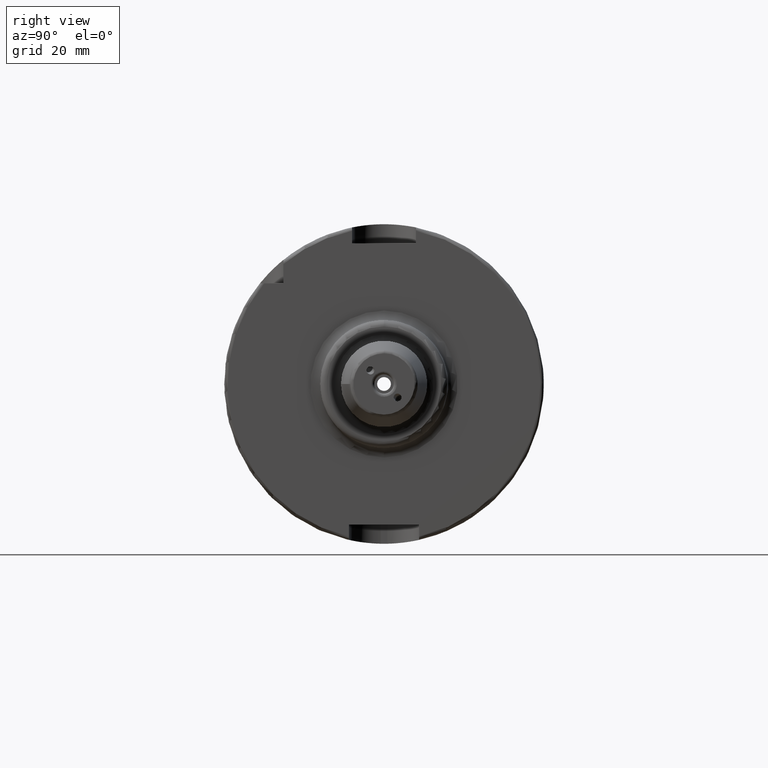
[diagram: clean part render]
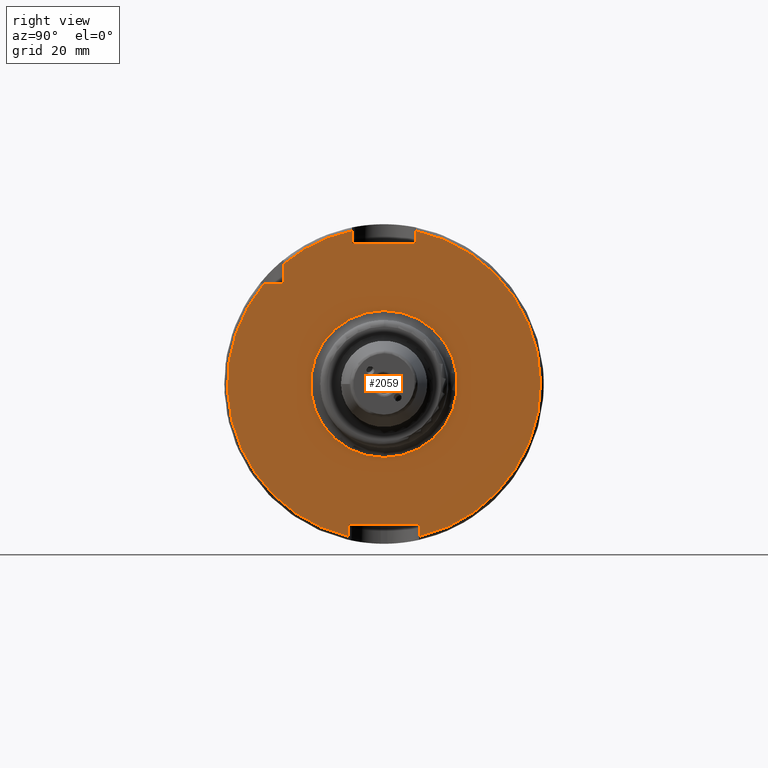
[diagram: same view with one face highlighted and labeled with its STEP entity id]
A machine part, right view. The second image highlights one B-rep face of the part: STEP entity #2059.
In plain terms, the highlighted planar face has unit normal (1, 0, 0).
Its self-contained STEP definition (entity closure, byte-faithful):
#89=FACE_BOUND('',#358,.T.);
#101=PLANE('',#2232);
#229=FACE_OUTER_BOUND('',#357,.T.);
#357=EDGE_LOOP('',(#1439,#1440,#1441,#1442,#1443,#1444,#1445,#1446,#1447,
#1448,#1449));
#358=EDGE_LOOP('',(#1450));
#484=LINE('',#3196,#592);
#485=LINE('',#3200,#593);
#486=LINE('',#3202,#594);
#487=LINE('',#3204,#595);
#488=LINE('',#3208,#596);
#489=LINE('',#3210,#597);
#490=LINE('',#3212,#598);
#491=LINE('',#3215,#599);
#592=VECTOR('',#2558,10.);
#593=VECTOR('',#2561,10.);
#594=VECTOR('',#2562,10.);
#595=VECTOR('',#2563,10.);
#596=VECTOR('',#2566,10.);
#597=VECTOR('',#2567,10.);
#598=VECTOR('',#2568,10.);
#599=VECTOR('',#2571,10.);
#715=CIRCLE('',#2231,23.);
#716=CIRCLE('',#2233,49.);
#717=CIRCLE('',#2234,49.);
#718=CIRCLE('',#2235,49.);
#855=VERTEX_POINT('',#3190);
#856=VERTEX_POINT('',#3194);
#857=VERTEX_POINT('',#3195);
#858=VERTEX_POINT('',#3197);
#859=VERTEX_POINT('',#3199);
#860=VERTEX_POINT('',#3201);
#861=VERTEX_POINT('',#3203);
#862=VERTEX_POINT('',#3205);
#863=VERTEX_POINT('',#3207);
#864=VERTEX_POINT('',#3209);
#865=VERTEX_POINT('',#3211);
#866=VERTEX_POINT('',#3213);
#1079=EDGE_CURVE('',#855,#855,#715,.T.);
#1080=EDGE_CURVE('',#856,#857,#484,.T.);
#1081=EDGE_CURVE('',#857,#858,#716,.T.);
#1082=EDGE_CURVE('',#858,#859,#485,.T.);
#1083=EDGE_CURVE('',#859,#860,#486,.T.);
#1084=EDGE_CURVE('',#860,#861,#487,.T.);
#1085=EDGE_CURVE('',#861,#862,#717,.T.);
#1086=EDGE_CURVE('',#862,#863,#488,.T.);
#1087=EDGE_CURVE('',#863,#864,#489,.T.);
#1088=EDGE_CURVE('',#864,#865,#490,.T.);
#1089=EDGE_CURVE('',#865,#866,#718,.T.);
#1090=EDGE_CURVE('',#866,#856,#491,.T.);
#1439=ORIENTED_EDGE('',*,*,#1080,.T.);
#1440=ORIENTED_EDGE('',*,*,#1081,.T.);
#1441=ORIENTED_EDGE('',*,*,#1082,.T.);
#1442=ORIENTED_EDGE('',*,*,#1083,.T.);
#1443=ORIENTED_EDGE('',*,*,#1084,.T.);
#1444=ORIENTED_EDGE('',*,*,#1085,.T.);
#1445=ORIENTED_EDGE('',*,*,#1086,.T.);
#1446=ORIENTED_EDGE('',*,*,#1087,.T.);
#1447=ORIENTED_EDGE('',*,*,#1088,.T.);
#1448=ORIENTED_EDGE('',*,*,#1089,.T.);
#1449=ORIENTED_EDGE('',*,*,#1090,.T.);
#1450=ORIENTED_EDGE('',*,*,#1079,.F.);
#2059=ADVANCED_FACE('',(#229,#89),#101,.T.);
#2231=AXIS2_PLACEMENT_3D('',#3192,#2554,#2555);
#2232=AXIS2_PLACEMENT_3D('',#3193,#2556,#2557);
#2233=AXIS2_PLACEMENT_3D('',#3198,#2559,#2560);
#2234=AXIS2_PLACEMENT_3D('',#3206,#2564,#2565);
#2235=AXIS2_PLACEMENT_3D('',#3214,#2569,#2570);
#2554=DIRECTION('center_axis',(1.,0.,0.));
#2555=DIRECTION('ref_axis',(0.,-1.,-1.22464679914735E-16));
#2556=DIRECTION('center_axis',(1.,0.,0.));
#2557=DIRECTION('ref_axis',(0.,0.,-1.));
#2558=DIRECTION('',(0.,-1.,0.));
#2559=DIRECTION('center_axis',(1.,0.,0.));
#2560=DIRECTION('ref_axis',(0.,0.,-1.));
#2561=DIRECTION('',(0.,0.,1.));
#2562=DIRECTION('',(0.,1.,0.));
#2563=DIRECTION('',(0.,0.,-1.));
#2564=DIRECTION('center_axis',(1.,0.,0.));
#2565=DIRECTION('ref_axis',(0.,0.,-1.));
#2566=DIRECTION('',(0.,0.,-1.));
#2567=DIRECTION('',(0.,-1.,0.));
#2568=DIRECTION('',(0.,0.,1.));
#2569=DIRECTION('center_axis',(1.,0.,0.));
#2570=DIRECTION('ref_axis',(0.,0.,-1.));
#2571=DIRECTION('',(0.,0.,-1.));
#3190=CARTESIAN_POINT('',(29.,-2.81668763803891E-15,-23.));
#3192=CARTESIAN_POINT('Origin',(29.,0.,0.));
#3193=CARTESIAN_POINT('Origin',(29.,0.,0.));
#3194=CARTESIAN_POINT('',(29.,-31.5,31.5));
#3195=CARTESIAN_POINT('',(29.,-37.5333185316726,31.5));
#3196=CARTESIAN_POINT('',(29.,-18.25,31.5));
#3197=CARTESIAN_POINT('',(29.,-11.,-47.7493455452533));
#3198=CARTESIAN_POINT('Origin',(29.,0.,0.));
#3199=CARTESIAN_POINT('',(29.,-11.,-44.));
#3200=CARTESIAN_POINT('',(29.,-11.,-22.));
#3201=CARTESIAN_POINT('',(29.,11.,-44.));
#3202=CARTESIAN_POINT('',(29.,-5.55111512312578E-16,-44.));
#3203=CARTESIAN_POINT('',(29.,11.,-47.7493455452533));
#3204=CARTESIAN_POINT('',(29.,11.,-22.));
#3205=CARTESIAN_POINT('',(29.,10.,47.9687398208458));
#3206=CARTESIAN_POINT('Origin',(29.,0.,0.));
#3207=CARTESIAN_POINT('',(29.,10.,44.));
#3208=CARTESIAN_POINT('',(29.,10.,22.));
#3209=CARTESIAN_POINT('',(29.,-10.,44.));
#3210=CARTESIAN_POINT('',(29.,0.,44.));
#3211=CARTESIAN_POINT('',(29.,-10.,47.9687398208458));
#3212=CARTESIAN_POINT('',(29.,-10.,22.));
#3213=CARTESIAN_POINT('',(29.,-31.5,37.5333185316726));
#3214=CARTESIAN_POINT('Origin',(29.,0.,0.));
#3215=CARTESIAN_POINT('',(29.,-31.5,15.75));